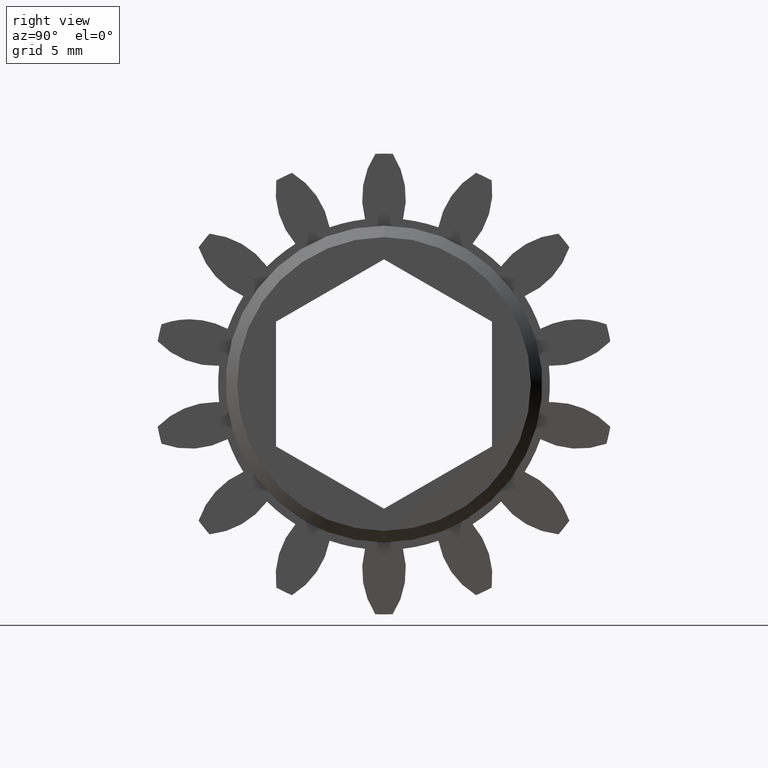
[diagram: clean part render]
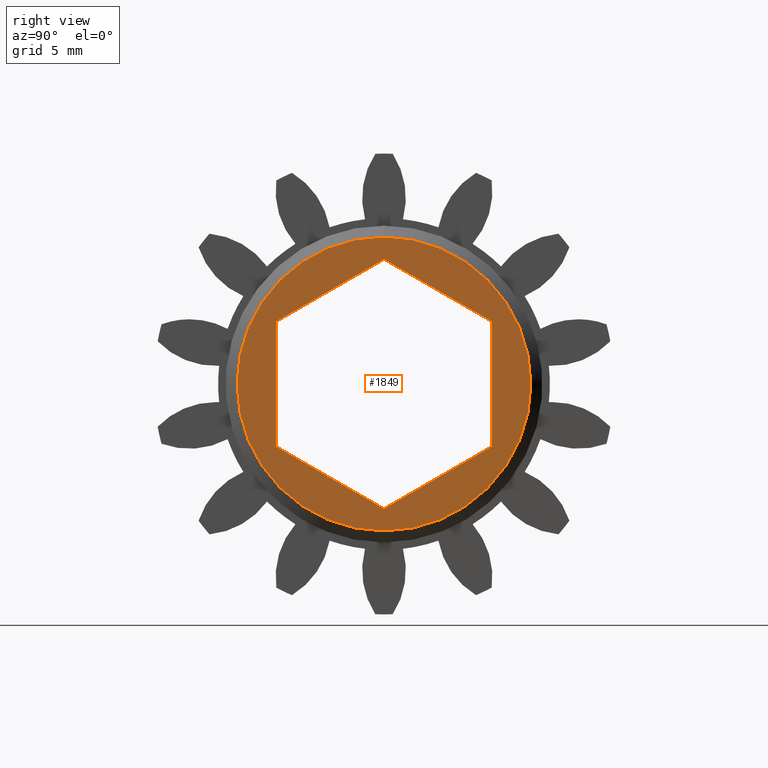
[diagram: same view with one face highlighted and labeled with its STEP entity id]
A machine part, right view. The second image highlights one B-rep face of the part: STEP entity #1849.
In plain terms, the highlighted planar face has unit normal (1, 0, 0).
Its self-contained STEP definition (entity closure, byte-faithful):
#10 = ORIENTED_EDGE ( 'NONE', *, *, #872, .F. ) ;
#16 = CARTESIAN_POINT ( 'NONE',  ( 0.5959999999999999700, 0.1875000000000000600, -0.1082531754730547700 ) ) ;
#37 = CIRCLE ( 'NONE', #758, 0.2549999999999997300 ) ;
#133 = DIRECTION ( 'NONE',  ( 0.0000000000000000000, 0.8660254037844386000, -0.5000000000000001100 ) ) ;
#146 = VERTEX_POINT ( 'NONE', #16 ) ;
#147 = VECTOR ( 'NONE', #133, 39.37007874015748100 ) ;
#173 = CARTESIAN_POINT ( 'NONE',  ( 0.5959999999999999700, 0.0000000000000000000, 0.0000000000000000000 ) ) ;
#195 = DIRECTION ( 'NONE',  ( 1.000000000000000000, 0.0000000000000000000, 0.0000000000000000000 ) ) ;
#203 = DIRECTION ( 'NONE',  ( 0.0000000000000000000, -0.8660254037844386000, -0.5000000000000000000 ) ) ;
#212 = VECTOR ( 'NONE', #1355, 39.37007874015748100 ) ;
#216 = LINE ( 'NONE', #387, #147 ) ;
#244 = LINE ( 'NONE', #615, #2147 ) ;
#278 = VECTOR ( 'NONE', #506, 39.37007874015748100 ) ;
#303 = FACE_OUTER_BOUND ( 'NONE', #1830, .T. ) ;
#347 = VECTOR ( 'NONE', #1291, 39.37007874015748100 ) ;
#387 = CARTESIAN_POINT ( 'NONE',  ( 0.5959999999999999700, -0.1875000000000000800, -0.1082531754730548500 ) ) ;
#465 = CARTESIAN_POINT ( 'NONE',  ( 0.5959999999999999700, 0.0000000000000000000, 0.0000000000000000000 ) ) ;
#506 = DIRECTION ( 'NONE',  ( 0.0000000000000000000, 0.0000000000000000000, 1.000000000000000000 ) ) ;
#519 = EDGE_CURVE ( 'NONE', #745, #1486, #216, .T. ) ;
#551 = DIRECTION ( 'NONE',  ( 0.0000000000000000000, 0.0000000000000000000, -1.000000000000000000 ) ) ;
#585 = DIRECTION ( 'NONE',  ( 0.0000000000000000000, 0.0000000000000000000, -1.000000000000000000 ) ) ;
#615 = CARTESIAN_POINT ( 'NONE',  ( 0.5959999999999999700, 3.492818589995771000E-018, 0.2165063509461097600 ) ) ;
#684 = CARTESIAN_POINT ( 'NONE',  ( 0.5959999999999999700, 3.492818589995771000E-018, 0.2165063509461097600 ) ) ;
#722 = EDGE_CURVE ( 'NONE', #2472, #1121, #244, .T. ) ;
#730 = EDGE_CURVE ( 'NONE', #857, #2472, #2229, .T. ) ;
#745 = VERTEX_POINT ( 'NONE', #1177 ) ;
#758 = AXIS2_PLACEMENT_3D ( 'NONE', #2277, #993, #551 ) ;
#770 = VECTOR ( 'NONE', #1252, 39.37007874015748100 ) ;
#778 = DIRECTION ( 'NONE',  ( 0.0000000000000000000, 0.0000000000000000000, -1.000000000000000000 ) ) ;
#782 = CARTESIAN_POINT ( 'NONE',  ( 0.5959999999999999700, 0.1875000000000000600, 0.1082531754730548500 ) ) ;
#784 = CARTESIAN_POINT ( 'NONE',  ( 0.5959999999999999700, -0.1875000000000000800, 0.1082531754730548500 ) ) ;
#816 = EDGE_CURVE ( 'NONE', #1377, #1980, #37, .T. ) ;
#838 = CARTESIAN_POINT ( 'NONE',  ( 0.5959999999999999700, 0.0000000000000000000, 0.2549999999999997300 ) ) ;
#848 = LINE ( 'NONE', #1976, #212 ) ;
#857 = VERTEX_POINT ( 'NONE', #2219 ) ;
#859 = EDGE_CURVE ( 'NONE', #146, #857, #2341, .T. ) ;
#872 = EDGE_CURVE ( 'NONE', #1486, #146, #848, .T. ) ;
#904 = CARTESIAN_POINT ( 'NONE',  ( 0.5959999999999999700, 0.1875000000000000600, -0.1082531754730547700 ) ) ;
#971 = EDGE_CURVE ( 'NONE', #1121, #745, #1808, .T. ) ;
#993 = DIRECTION ( 'NONE',  ( 1.000000000000000000, 0.0000000000000000000, 0.0000000000000000000 ) ) ;
#1050 = EDGE_LOOP ( 'NONE', ( #1426, #1863, #1459, #2322, #1861, #10 ) ) ;
#1101 = ORIENTED_EDGE ( 'NONE', *, *, #816, .T. ) ;
#1121 = VERTEX_POINT ( 'NONE', #784 ) ;
#1177 = CARTESIAN_POINT ( 'NONE',  ( 0.5959999999999999700, -0.1875000000000000800, -0.1082531754730548500 ) ) ;
#1252 = DIRECTION ( 'NONE',  ( 0.0000000000000000000, -0.8660254037844386000, 0.5000000000000001100 ) ) ;
#1261 = CARTESIAN_POINT ( 'NONE',  ( 0.5959999999999999700, -0.1875000000000000800, 0.1082531754730548500 ) ) ;
#1291 = DIRECTION ( 'NONE',  ( 0.0000000000000000000, 0.0000000000000000000, -1.000000000000000000 ) ) ;
#1295 = CIRCLE ( 'NONE', #2212, 0.2549999999999997300 ) ;
#1355 = DIRECTION ( 'NONE',  ( 0.0000000000000000000, 0.8660254037844383700, 0.5000000000000003300 ) ) ;
#1377 = VERTEX_POINT ( 'NONE', #2528 ) ;
#1387 = PLANE ( 'NONE',  #2517 ) ;
#1426 = ORIENTED_EDGE ( 'NONE', *, *, #519, .F. ) ;
#1448 = ORIENTED_EDGE ( 'NONE', *, *, #2530, .T. ) ;
#1459 = ORIENTED_EDGE ( 'NONE', *, *, #722, .F. ) ;
#1486 = VERTEX_POINT ( 'NONE', #1779 ) ;
#1775 = FACE_BOUND ( 'NONE', #1050, .T. ) ;
#1779 = CARTESIAN_POINT ( 'NONE',  ( 0.5959999999999999700, -1.707404996040164500E-017, -0.2165063509461097900 ) ) ;
#1808 = LINE ( 'NONE', #1261, #347 ) ;
#1830 = EDGE_LOOP ( 'NONE', ( #1448, #1101 ) ) ;
#1849 = ADVANCED_FACE ( 'NONE', ( #303, #1775 ), #1387, .T. ) ;
#1861 = ORIENTED_EDGE ( 'NONE', *, *, #859, .F. ) ;
#1863 = ORIENTED_EDGE ( 'NONE', *, *, #971, .F. ) ;
#1976 = CARTESIAN_POINT ( 'NONE',  ( 0.5959999999999999700, -3.001985722042346700E-017, -0.2165063509461097600 ) ) ;
#1980 = VERTEX_POINT ( 'NONE', #838 ) ;
#2147 = VECTOR ( 'NONE', #203, 39.37007874015748900 ) ;
#2212 = AXIS2_PLACEMENT_3D ( 'NONE', #465, #195, #585 ) ;
#2219 = CARTESIAN_POINT ( 'NONE',  ( 0.5959999999999999700, 0.1875000000000000600, 0.1082531754730548500 ) ) ;
#2229 = LINE ( 'NONE', #782, #770 ) ;
#2277 = CARTESIAN_POINT ( 'NONE',  ( 0.5959999999999999700, 0.0000000000000000000, 0.0000000000000000000 ) ) ;
#2290 = DIRECTION ( 'NONE',  ( 1.000000000000000000, 0.0000000000000000000, 0.0000000000000000000 ) ) ;
#2322 = ORIENTED_EDGE ( 'NONE', *, *, #730, .F. ) ;
#2341 = LINE ( 'NONE', #904, #278 ) ;
#2472 = VERTEX_POINT ( 'NONE', #684 ) ;
#2517 = AXIS2_PLACEMENT_3D ( 'NONE', #173, #2290, #778 ) ;
#2528 = CARTESIAN_POINT ( 'NONE',  ( 0.5959999999999999700, 3.245314017740484400E-017, -0.2549999999999997300 ) ) ;
#2530 = EDGE_CURVE ( 'NONE', #1980, #1377, #1295, .T. ) ;